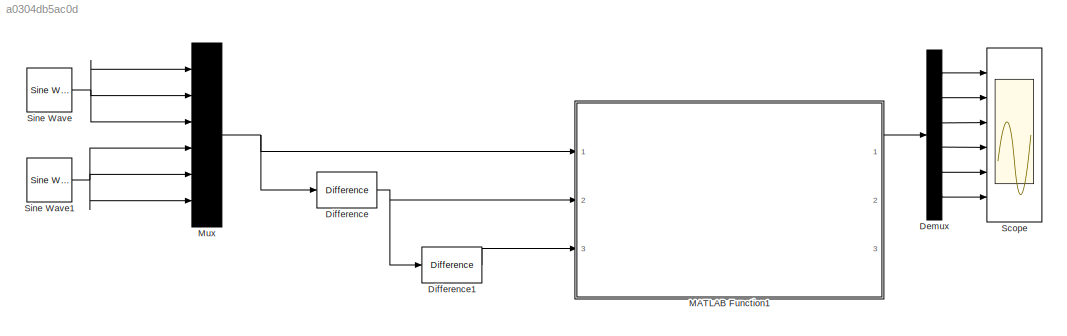
MODEL slx_a0304db5ac0d
KIND model
CONFIG AbsTol = auto
CONFIG EnableMultiTasking = off
CONFIG FixedStep = auto
CONFIG MaxStep = auto
CONFIG MinStep = auto
CONFIG RelTol = 1e-3
CONFIG SampleTimeConstraint = Unconstrained
CONFIG Solver = VariableStepAuto
CONFIG SolverName = VariableStepAuto
CONFIG StartTime = 0.0
CONFIG StopTime = 10.0
BLOCK [Demux] Demux
  Outputs = 6
  Ports = [1, 6]
BLOCK [Reference] Difference  REF=simulink/Discrete/Difference
  Ports = [1, 1]
  SourceBlock = simulink/Discrete/Difference
  SourceProductBaseCode = SL
  SourceType = Difference
BLOCK [Reference] Difference1  REF=simulink/Discrete/Difference
  Ports = [1, 1]
  SourceBlock = simulink/Discrete/Difference
  SourceProductBaseCode = SL
  SourceType = Difference
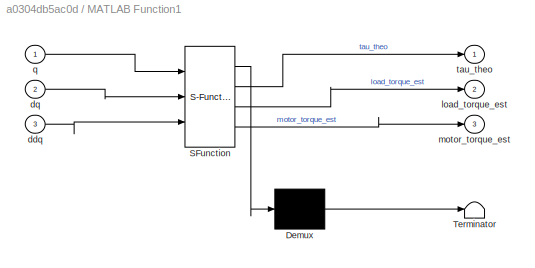
BLOCK [SubSystem] MATLAB Function1
  ErrorFcn = Stateflow.Translate.translate
  PermitHierarchicalResolution = ExplicitOnly
  Ports = [3, 3]
  RequestExecContextInheritance = off
  SFBlockType = MATLAB Function
  TreatAsAtomicUnit = on
BLOCK [Demux] MATLAB Function1/ Demux 
  Outputs = 1
  Ports = [1, 1]
BLOCK [S-Function] MATLAB Function1/ SFunction 
  EnableBusSupport = on
  FunctionName = sf_sfun
  PortCounts = [3 4]
  Ports = [3, 4]
  SFcnIsStateOwnerBlock = off
  SFunctionDeploymentMode = off
  Tag = Stateflow S-Function SixTrajectory 1
BLOCK [Terminator] MATLAB Function1/ Terminator 
BLOCK [Inport] MATLAB Function1/ddq
  Port = 3
BLOCK [Inport] MATLAB Function1/dq
  Port = 2
BLOCK [Outport] MATLAB Function1/load_torque_est
  Port = 2
BLOCK [Outport] MATLAB Function1/motor_torque_est
  Port = 3
BLOCK [Inport] MATLAB Function1/q
BLOCK [Outport] MATLAB Function1/tau_theo
BLOCK [Mux] Mux
  DisplayOption = bar
  Inputs = 6
  Ports = [6, 1]
BLOCK [Scope] Scope
  Floating = off
  NumInputPorts = 6
  Ports = [6]
  ScopeSpecificationString = Simulink.scopes.TimeScopeBlockCfg('CurrentConfiguration', extmgr.ConfigurationSet(extmgr.Configuration('Core','General UI',true),extmgr.Configuration('Core','Source UI',true),extmgr.Configuration('Sources','WiredSimulink',true),extmgr.Configuration('Visuals','Time Domain',true,'SerializedDisplays',{struct('MinYLimReal','-44.28299','MaxYLimReal','44.28073','YLabelReal','','MinYLimMag','0.00000','Ma...<+4843ch>
BLOCK [Reference] Sine Wave  REF=dspsrcs4/Sine Wave
  Ports = [0, 1]
  SourceBlock = dspsrcs4/Sine Wave
  SourceProductBaseCode = DS
  SourceType = Sine Wave
BLOCK [Reference] Sine Wave1  REF=dspsrcs4/Sine Wave
  Ports = [0, 1]
  SourceBlock = dspsrcs4/Sine Wave
  SourceProductBaseCode = DS
  SourceType = Sine Wave
LINE Demux:1 -> Scope:1
LINE Demux:2 -> Scope:2
LINE Demux:3 -> Scope:3
LINE Demux:4 -> Scope:4
LINE Demux:5 -> Scope:5
LINE Demux:6 -> Scope:6
LINE Difference1:1 -> MATLAB Function1:3
NET Difference:1 -> Difference1:1, MATLAB Function1:2
LINE MATLAB Function1:1 -> Demux:1
NET Mux:1 -> Difference:1, MATLAB Function1:1
NET Sine Wave1:1 -> Mux:4, Mux:5, Mux:6
NET Sine Wave:1 -> Mux:1, Mux:2, Mux:3
note: NET lines group one-source signal fan-out (src -> all destinations, sorted); 1:1 wires keep LINE
CHART MATLAB Function1 states=1 transitions=1
  STATE_LABEL 'eML_blk_kernel()'
  STATE_LABEL 'SCRIPT:\nfunction [tau_theo,load_torque_est,motor_torque_est] = tor_compute(q,dq,ddq)\n%#codegen\n% 输入参数: 关节角度q: 6xn; 关节角速度q: 6xn; 关节角加速度q: 6xn;\n% 输出参数: 理论计算力矩tau_theo: 6xn; 辨识参数估计负载力矩load_torque_est: 6xn; 辨识参数估计电机力矩motor_torque_est: 6xn;\nn = size(q,2); % n为轨迹点数\nm = size(q,1); % m为自由度个数\n%% 名义动力学模型 理论力矩估计\n%名义动力学参数设置\ng = 9.81; %重力加速度g\n%改进DH参数\nalpha=[0;pi/2;0;0;pi/2;-pi/2];    \na=[0;0;-0.264;-0.237;0;0]...<+3608ch>'
